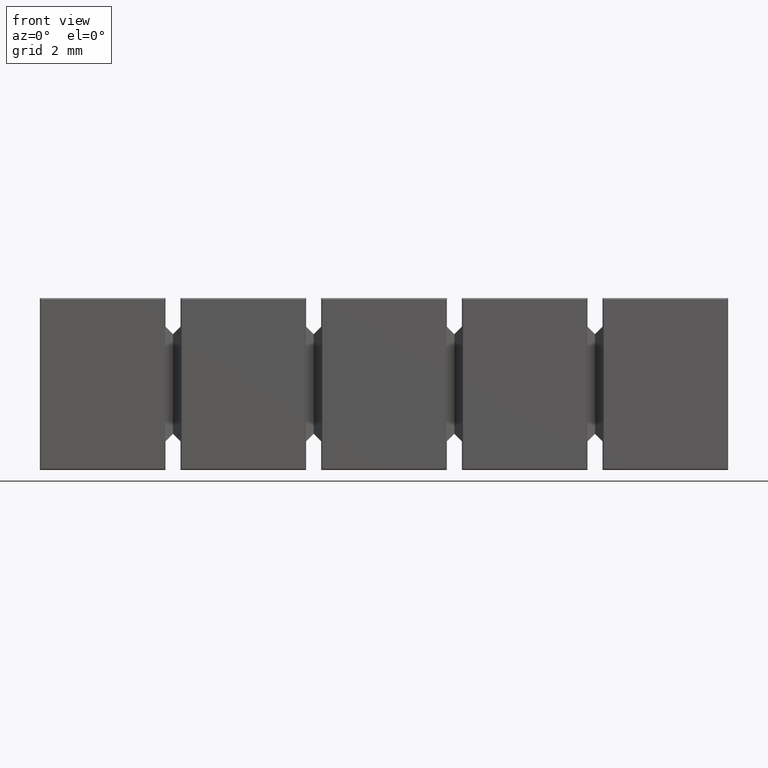
[diagram: clean part render]
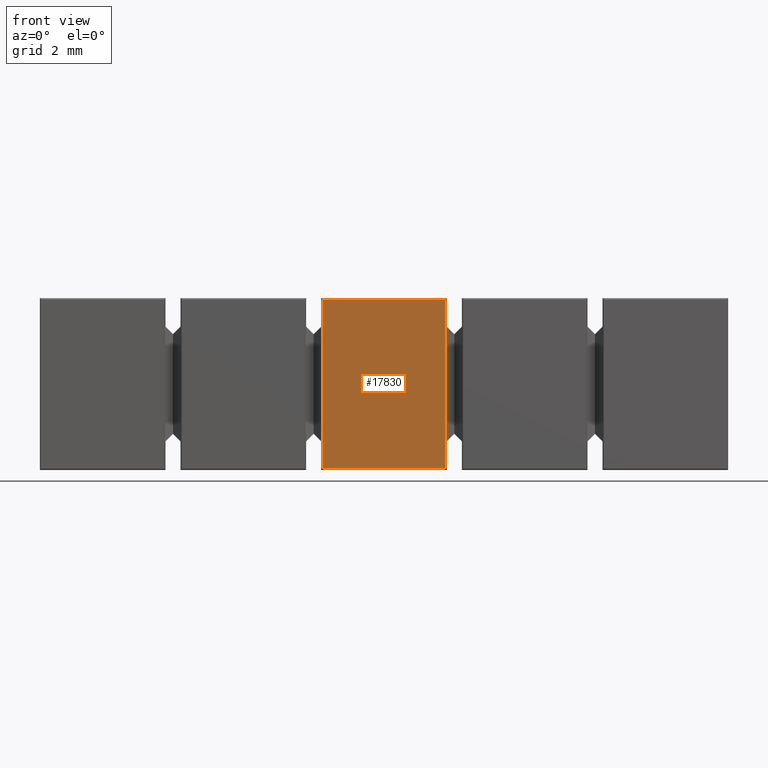
[diagram: same view with one face highlighted and labeled with its STEP entity id]
A machine part, front view. The second image highlights one B-rep face of the part: STEP entity #17830.
In plain terms, the highlighted planar face has unit normal (-0, 1, -0).
Its self-contained STEP definition (entity closure, byte-faithful):
#17160=CARTESIAN_POINT('',(25.1869785548769,3.76950785552757,
43.0497631217263));
#17170=DIRECTION('',(1.,-7.10542735760158E-15,-2.11383437872987E-12));
#17180=VECTOR('',#17170,1.);
#17190=LINE('',#17160,#17180);
#17200=CARTESIAN_POINT('',(16.4629727651828,3.76950785552764,
43.0497631217447));
#17210=VERTEX_POINT('',#17200);
#17220=CARTESIAN_POINT('',(22.6724989881559,3.76950785552759,
43.0497631217316));
#17230=VERTEX_POINT('',#17220);
#17240=EDGE_CURVE('',#17210,#17230,#17190,.T.);
#17530=CARTESIAN_POINT('',(17.8111722324095,3.7695078555267,
40.7950000204988));
#17540=DIRECTION('',(-7.1054273567378E-15,-1.,4.08396006638911E-13));
#17550=DIRECTION('',(1.,-7.105427357601E-15,-2.11364818889553E-12));
#17560=AXIS2_PLACEMENT_3D('',#17530,#17540,#17550);
#17570=PLANE('',#17560);
#17580=CARTESIAN_POINT('',(16.4629727652052,3.76950785553197,
53.6700000000611));
#17590=DIRECTION('',(-2.11383437872987E-12,-4.08396006638896E-13,-1.));
#17600=VECTOR('',#17590,1.);
#17610=LINE('',#17580,#17600);
#17620=CARTESIAN_POINT('',(16.4629727651733,3.7695078555258,
38.5402368782912));
#17630=VERTEX_POINT('',#17620);
#17640=EDGE_CURVE('',#17210,#17630,#17610,.T.);
#17650=ORIENTED_EDGE('',*,*,#17640,.F.);
#17660=CARTESIAN_POINT('',(25.186978554889,3.76950785552573,
38.5402368782728));
#17670=DIRECTION('',(-1.,7.10542735760158E-15,2.11383437872987E-12));
#17680=VECTOR('',#17670,1.);
#17690=LINE('',#17660,#17680);
#17700=CARTESIAN_POINT('',(22.6724989881463,3.76950785552575,
38.5402368782781));
#17710=VERTEX_POINT('',#17700);
#17720=EDGE_CURVE('',#17710,#17630,#17690,.T.);
#17730=ORIENTED_EDGE('',*,*,#17720,.T.);
#17740=CARTESIAN_POINT('',(22.6724989881783,3.76950785553193,
53.6700000000777));
#17750=DIRECTION('',(-2.11383437872987E-12,-4.08396006638896E-13,-1.));
#17760=VECTOR('',#17750,1.);
#17770=LINE('',#17740,#17760);
#17780=EDGE_CURVE('',#17230,#17710,#17770,.T.);
#17790=ORIENTED_EDGE('',*,*,#17780,.T.);
#17800=ORIENTED_EDGE('',*,*,#17240,.T.);
#17810=EDGE_LOOP('',(#17800,#17790,#17730,#17650));
#17820=FACE_OUTER_BOUND('',#17810,.T.);
#17830=ADVANCED_FACE('',(#17820),#17570,.F.);